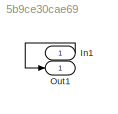
MODEL slx_5b9ce30cae69
KIND model
BLOCK [Inport] In1
  IconDisplay = Port number
BLOCK [Outport] Out1
  IconDisplay = Port number
LINE In1:1 -> Out1:1
